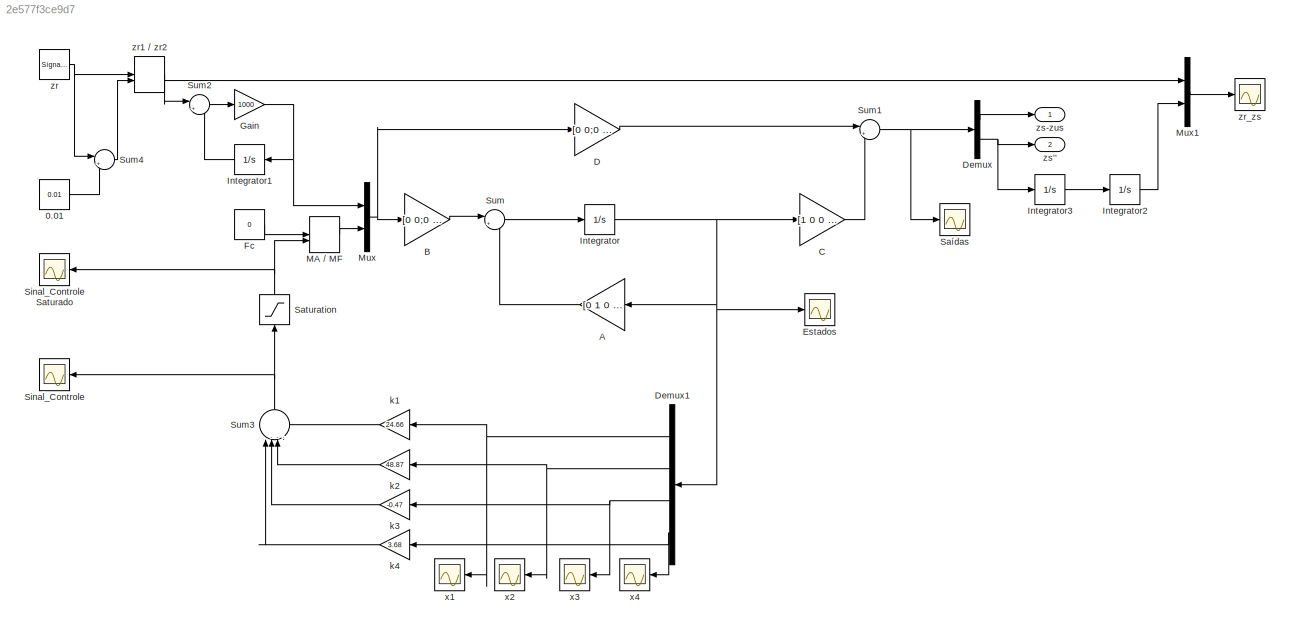
MODEL slx_2e577f3ce9d7
KIND model
CONFIG AbsTol = auto
CONFIG FixedStep = auto
CONFIG MaxStep = auto
CONFIG MinStep = auto
CONFIG RelTol = 1e-3
CONFIG SampleTimeConstraint = Unconstrained
CONFIG Solver = ode23t
CONFIG SolverMode = Auto
CONFIG SolverName = ode23t
CONFIG StartTime = 0.0
CONFIG StopTime = 10.0
BLOCK [Constant] 0.01
  Value = 0.01
BLOCK [Gain] A
  Gain = [0 1 0 -1;-367.346938775510 -3.06122448979592 0 3.06122448979592;0 0 0 1;900 7.50000000000000 -1250 -12.5000000000000]
  Multiplication = Matrix(K*u)
  OutDataTypeStr = Inherit: Inherit via internal rule
  ParamDataTypeStr = Inherit: Inherit via internal rule
  SaturateOnIntegerOverflow = off
BLOCK [Gain] B
  Gain = [0 0;0 0.408163265306122;-1 0;5 -1]
  Multiplication = Matrix(K*u)
  OutDataTypeStr = Inherit: Inherit via internal rule
  ParamDataTypeStr = Inherit: Inherit via internal rule
  SaturateOnIntegerOverflow = off
BLOCK [Gain] C
  Gain = [1 0 0 0;-367.346938775510 -3.06122448979592 0 3.06122448979592]
  Multiplication = Matrix(K*u)
  OutDataTypeStr = Inherit: Inherit via internal rule
  ParamDataTypeStr = Inherit: Inherit via internal rule
  SaturateOnIntegerOverflow = off
BLOCK [Gain] D
  Gain = [0 0;0 0.408163265306122]
  Multiplication = Matrix(K*u)
  OutDataTypeStr = Inherit: Inherit via internal rule
  ParamDataTypeStr = Inherit: Inherit via internal rule
  SaturateOnIntegerOverflow = off
BLOCK [Demux] Demux
  DisplayOption = bar
  Outputs = 2
  Ports = [1, 2]
BLOCK [Demux] Demux1
  DisplayOption = bar
  Ports = [1, 4]
BLOCK [Scope] Estados
  Floating = off
  NumInputPorts = 1
  Ports = [1]
BLOCK [Constant] Fc
  Value = 0
BLOCK [Gain] Gain
  Gain = 1000
  OutDataTypeStr = Inherit: Inherit via internal rule
  ParamDataTypeStr = Inherit: Inherit via internal rule
  SaturateOnIntegerOverflow = off
BLOCK [Integrator] Integrator
  Ports = [1, 1]
BLOCK [Integrator] Integrator1
  Ports = [1, 1]
BLOCK [Integrator] Integrator2
  Ports = [1, 1]
BLOCK [Integrator] Integrator3
  Ports = [1, 1]
BLOCK [ManualSwitch] MA // MF
  CurrentSetting = 0
BLOCK [Mux] Mux
  DisplayOption = bar
  Inputs = 2
  Ports = [2, 1]
BLOCK [Mux] Mux1
  DisplayOption = bar
  Inputs = 2
  Ports = [2, 1]
BLOCK [Saturate] Saturation
  InputPortMap = u0
  LowerLimit = -30
  Ports = [1, 1]
  UpperLimit = 30
BLOCK [Scope] Saídas
  Floating = off
  NumInputPorts = 1
  Ports = [1]
  SaveName = ScopeData1
BLOCK [Scope] Sinal_Controle
  Floating = off
  NumInputPorts = 1
  Ports = [1]
  SaveName = ScopeData7
BLOCK [Scope] Sinal_Controle Saturado
  Floating = off
  NumInputPorts = 1
  Ports = [1]
  SaveName = ScopeData8
BLOCK [Sum] Sum
  IconShape = round
  InputSameDT = off
  Inputs = |++
  OutDataTypeStr = Inherit: Inherit via internal rule
  Ports = [2, 1]
  SaturateOnIntegerOverflow = off
BLOCK [Sum] Sum1
  IconShape = round
  InputSameDT = off
  Inputs = |++
  OutDataTypeStr = Inherit: Inherit via internal rule
  Ports = [2, 1]
  SaturateOnIntegerOverflow = off
BLOCK [Sum] Sum2
  IconShape = round
  InputSameDT = off
  Inputs = |+-
  OutDataTypeStr = Inherit: Inherit via internal rule
  Ports = [2, 1]
  SaturateOnIntegerOverflow = off
BLOCK [Sum] Sum3
  IconShape = round
  InputSameDT = off
  Inputs = |----
  OutDataTypeStr = Inherit: Inherit via internal rule
  Ports = [4, 1]
  SaturateOnIntegerOverflow = off
BLOCK [Sum] Sum4
  IconShape = round
  InputSameDT = off
  Inputs = |++
  OutDataTypeStr = Inherit: Inherit via internal rule
  Ports = [2, 1]
  SaturateOnIntegerOverflow = off
BLOCK [Gain] k1
  Gain = 24.66
  OutDataTypeStr = Inherit: Inherit via internal rule
  ParamDataTypeStr = Inherit: Inherit via internal rule
  SaturateOnIntegerOverflow = off
BLOCK [Gain] k2
  Gain = 48.87
  OutDataTypeStr = Inherit: Inherit via internal rule
  ParamDataTypeStr = Inherit: Inherit via internal rule
  SaturateOnIntegerOverflow = off
BLOCK [Gain] k3
  Gain = -0.47
  OutDataTypeStr = Inherit: Inherit via internal rule
  ParamDataTypeStr = Inherit: Inherit via internal rule
  SaturateOnIntegerOverflow = off
BLOCK [Gain] k4
  Gain = 3.68
  OutDataTypeStr = Inherit: Inherit via internal rule
  ParamDataTypeStr = Inherit: Inherit via internal rule
  SaturateOnIntegerOverflow = off
BLOCK [Scope] x1
  Floating = off
  NumInputPorts = 1
  Ports = [1]
  SaveName = ScopeData2
BLOCK [Scope] x2
  Floating = off
  NumInputPorts = 1
  Ports = [1]
  SaveName = ScopeData3
BLOCK [Scope] x3
  Floating = off
  NumInputPorts = 1
  Ports = [1]
  SaveName = ScopeData4
BLOCK [Scope] x4
  Floating = off
  NumInputPorts = 1
  Ports = [1]
  SaveName = ScopeData5
BLOCK [SignalGenerator] zr
  Amplitude = -0.01
  Frequency = 0.3
  Ports = [0, 1]
  WaveForm = square
BLOCK [ManualSwitch] zr1 // zr2
BLOCK [Scope] zr_zs
  Floating = off
  NumInputPorts = 1
  Ports = [1]
  SaveName = ScopeData6
BLOCK [Outport] zs''
  IconDisplay = Port number
  Port = 2
BLOCK [Outport] zs-zus
  IconDisplay = Port number
LINE 0.01:1 -> Sum4:2
LINE A:1 -> Sum:2
LINE B:1 -> Sum:1
LINE C:1 -> Sum1:2
LINE D:1 -> Sum1:1
NET Demux1:1 -> k1:1, x1:1
NET Demux1:2 -> k2:1, x2:1
NET Demux1:3 -> k3:1, x3:1
NET Demux1:4 -> k4:1, x4:1
LINE Demux:1 -> zs-zus:1
NET Demux:2 -> Integrator3:1, zs'':1
LINE Fc:1 -> MA // MF:1
NET Gain:1 -> Integrator1:1, Mux:1
LINE Integrator1:1 -> Sum2:2
LINE Integrator2:1 -> Mux1:2
LINE Integrator3:1 -> Integrator2:1
NET Integrator:1 -> A:1, C:1, Demux1:1, Estados:1
LINE MA // MF:1 -> Mux:2
LINE Mux1:1 -> zr_zs:1
NET Mux:1 -> B:1, D:1
NET Saturation:1 -> MA // MF:2, Sinal_Controle Saturado:1
NET Sum1:1 -> Demux:1, Saídas:1
LINE Sum2:1 -> Gain:1
NET Sum3:1 -> Saturation:1, Sinal_Controle:1
LINE Sum4:1 -> zr1 // zr2:2
LINE Sum:1 -> Integrator:1
LINE k1:1 -> Sum3:4
LINE k2:1 -> Sum3:3
LINE k3:1 -> Sum3:2
LINE k4:1 -> Sum3:1
NET zr1 // zr2:1 -> Mux1:1, Sum2:1
NET zr:1 -> Sum4:1, zr1 // zr2:1
note: NET lines group one-source signal fan-out (src -> all destinations, sorted); 1:1 wires keep LINE
